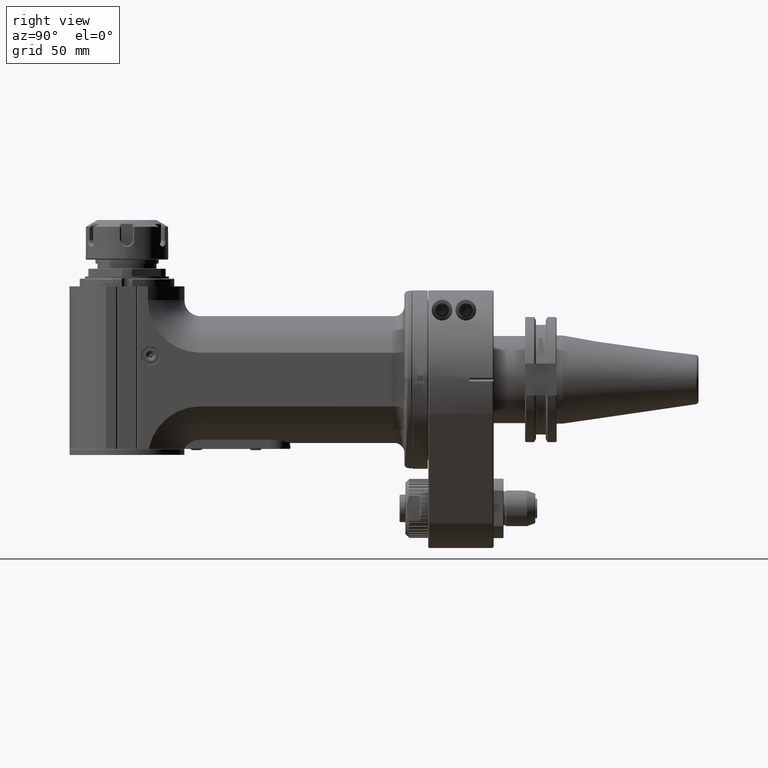
[diagram: clean part render]
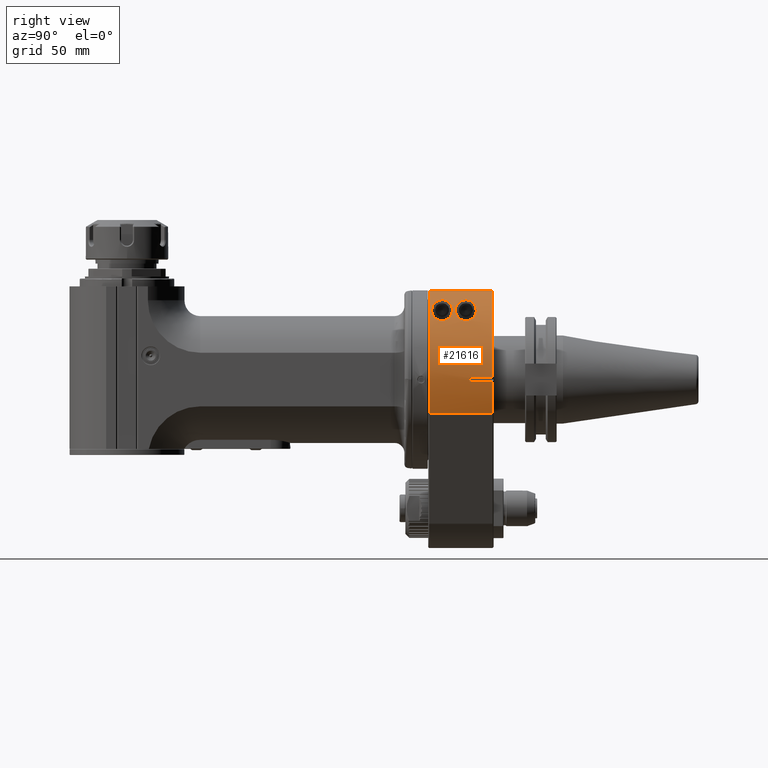
[diagram: same view with one face highlighted and labeled with its STEP entity id]
A machine part, right view. The second image highlights one B-rep face of the part: STEP entity #21616.
In plain terms, the highlighted cylindrical surface (partial cylindrical patch) has radius 45 mm, axis along (0, 1, 0).
Its self-contained STEP definition (entity closure, byte-faithful):
#366=FACE_BOUND('',#3705,.T.);
#367=FACE_BOUND('',#3706,.T.);
#1450=B_SPLINE_CURVE_WITH_KNOTS('',3,(#40767,#40768,#40769,#40770,#40771,
#40772,#40773,#40774,#40775,#40776,#40777,#40778,#40779,#40780,#40781,#40782,
#40783,#40784,#40785,#40786,#40787,#40788,#40789),.UNSPECIFIED.,.F.,.F.,
(4,2,2,2,2,3,2,2,2,2,4),(-1.14650177911681,-0.782118711859802,-0.417735644602789,
-0.208867822301395,-0.104433911150697,0.,0.104433911150697,0.208867822301395,
0.417735644602789,0.782118711859802,1.14650177911681),.UNSPECIFIED.);
#1451=B_SPLINE_CURVE_WITH_KNOTS('',3,(#40790,#40791,#40792,#40793,#40794,
#40795,#40796,#40797,#40798,#40799,#40800,#40801,#40802,#40803,#40804,#40805,
#40806,#40807,#40808,#40809),.UNSPECIFIED.,.F.,.F.,(4,2,2,2,2,2,2,2,2,4),
(1.14650177911681,1.42316705646968,1.69983233382254,1.91463594485582,2.02203775037247,
2.12943955588911,2.3217079428636,2.51397632983809,2.81307214595482,3.11216796207156),
 .UNSPECIFIED.);
#1452=B_SPLINE_CURVE_WITH_KNOTS('',3,(#40812,#40813,#40814,#40815,#40816,
#40817,#40818,#40819,#40820,#40821,#40822,#40823,#40824,#40825,#40826,#40827,
#40828,#40829,#40830,#40831),.UNSPECIFIED.,.F.,.F.,(4,2,2,2,2,2,2,2,2,4),
(1.12703774249658,1.40370301984945,1.68036829720231,1.89517190823559,2.00257371375224,
2.10997551926888,2.30224390624337,2.49451229321786,2.79360810933459,3.09270392545133),
 .UNSPECIFIED.);
#1453=B_SPLINE_CURVE_WITH_KNOTS('',3,(#40832,#40833,#40834,#40835,#40836,
#40837,#40838,#40839,#40840,#40841,#40842,#40843,#40844,#40845,#40846,#40847,
#40848,#40849,#40850,#40851,#40852,#40853,#40854),.UNSPECIFIED.,.F.,.F.,
(4,2,2,2,2,3,2,2,2,2,4),(3.09270392545133,3.45708699270834,3.82147005996535,
4.03033788226675,4.13477179341744,4.23920570456814,4.33003417437082,4.4208626441735,
4.72757109503348,5.0469072710491,5.36624344706473),.UNSPECIFIED.);
#2405=FACE_OUTER_BOUND('',#3704,.T.);
#3704=EDGE_LOOP('',(#19332,#19333,#19334,#19335,#19336,#19337,#19338,#19339));
#3705=EDGE_LOOP('',(#19340,#19341));
#3706=EDGE_LOOP('',(#19342,#19343));
#4537=CIRCLE('',#23171,45.);
#4541=CIRCLE('',#23177,45.);
#4686=CIRCLE('',#23479,45.);
#4687=CIRCLE('',#23482,45.);
#6334=LINE('',#39176,#8396);
#6519=LINE('',#40731,#8581);
#6529=LINE('',#40760,#8591);
#6530=LINE('',#40764,#8592);
#8396=VECTOR('',#27896,10.);
#8581=VECTOR('',#28673,32.00018990274);
#8591=VECTOR('',#28707,10.);
#8592=VECTOR('',#28712,11.4999799494804);
#10524=VERTEX_POINT('',#39142);
#10525=VERTEX_POINT('',#39146);
#10527=VERTEX_POINT('',#39151);
#10538=VERTEX_POINT('',#39184);
#10775=VERTEX_POINT('',#40729);
#10777=VERTEX_POINT('',#40750);
#10779=VERTEX_POINT('',#40758);
#10780=VERTEX_POINT('',#40762);
#10781=VERTEX_POINT('',#40765);
#10782=VERTEX_POINT('',#40766);
#10783=VERTEX_POINT('',#40810);
#10784=VERTEX_POINT('',#40811);
#13303=EDGE_CURVE('',#10524,#10525,#4537,.T.);
#13313=EDGE_CURVE('',#10524,#10527,#6334,.T.);
#13317=EDGE_CURVE('',#10538,#10527,#4541,.T.);
#13701=EDGE_CURVE('',#10775,#10525,#6519,.T.);
#13712=EDGE_CURVE('',#10775,#10777,#4686,.T.);
#13715=EDGE_CURVE('',#10779,#10777,#6529,.T.);
#13716=EDGE_CURVE('',#10779,#10780,#4687,.T.);
#13717=EDGE_CURVE('',#10538,#10780,#6530,.T.);
#13718=EDGE_CURVE('',#10781,#10782,#1450,.T.);
#13719=EDGE_CURVE('',#10782,#10781,#1451,.T.);
#13720=EDGE_CURVE('',#10783,#10784,#1452,.T.);
#13721=EDGE_CURVE('',#10784,#10783,#1453,.T.);
#19332=ORIENTED_EDGE('',*,*,#13712,.T.);
#19333=ORIENTED_EDGE('',*,*,#13715,.F.);
#19334=ORIENTED_EDGE('',*,*,#13716,.T.);
#19335=ORIENTED_EDGE('',*,*,#13717,.F.);
#19336=ORIENTED_EDGE('',*,*,#13317,.T.);
#19337=ORIENTED_EDGE('',*,*,#13313,.F.);
#19338=ORIENTED_EDGE('',*,*,#13303,.T.);
#19339=ORIENTED_EDGE('',*,*,#13701,.F.);
#19340=ORIENTED_EDGE('',*,*,#13718,.T.);
#19341=ORIENTED_EDGE('',*,*,#13719,.T.);
#19342=ORIENTED_EDGE('',*,*,#13720,.F.);
#19343=ORIENTED_EDGE('',*,*,#13721,.F.);
#20609=CYLINDRICAL_SURFACE('',#23481,45.);
#21616=ADVANCED_FACE('',(#2405,#366,#367),#20609,.T.);
#23171=AXIS2_PLACEMENT_3D('',#39148,#27887,#27888);
#23177=AXIS2_PLACEMENT_3D('',#39185,#27905,#27906);
#23479=AXIS2_PLACEMENT_3D('',#40754,#28701,#28702);
#23481=AXIS2_PLACEMENT_3D('',#40761,#28708,#28709);
#23482=AXIS2_PLACEMENT_3D('',#40763,#28710,#28711);
#27887=DIRECTION('center_axis',(0.,1.,0.));
#27888=DIRECTION('ref_axis',(1.,0.,2.109027738445E-8));
#27896=DIRECTION('',(0.,1.,0.));
#27905=DIRECTION('center_axis',(0.,-1.,0.));
#27906=DIRECTION('ref_axis',(0.999758397003229,0.,0.0219806192254406));
#28673=DIRECTION('',(1.46770612851E-13,-1.,-1.414415739578E-13));
#28701=DIRECTION('center_axis',(0.,-1.,0.));
#28702=DIRECTION('ref_axis',(0.923076922750328,0.,-0.384615385399212));
#28707=DIRECTION('',(0.,1.,0.));
#28708=DIRECTION('center_axis',(0.,1.,0.));
#28709=DIRECTION('ref_axis',(1.,0.,0.));
#28710=DIRECTION('center_axis',(0.,-1.,0.));
#28711=DIRECTION('ref_axis',(0.999758397003229,0.,-0.0219806192254506));
#28712=DIRECTION('',(5.7409753551518E-9,-0.999999999999966,-2.61117230017191E-7));
#39142=CARTESIAN_POINT('',(0.750000000009649,0.50022981440102,44.9937495655045));
#39146=CARTESIAN_POINT('',(41.5384615225711,0.500114907696063,-17.3076923458251));
#39148=CARTESIAN_POINT('Origin',(-8.393285966166E-13,0.5002298153949,3.170797058329E-13));
#39151=CARTESIAN_POINT('',(0.750000000011856,32.4999739345885,44.9937495654133));
#39176=CARTESIAN_POINT('',(0.75,0.,44.9937495659119));
#39184=CARTESIAN_POINT('',(44.989128046026,32.4999736150656,0.989129648273171));
#39185=CARTESIAN_POINT('Origin',(-3.67261766546E-13,32.49997393338,6.679101816145E-13));
#40729=CARTESIAN_POINT('',(41.5384614538739,32.5003083543191,-17.3076923172041));
#40731=CARTESIAN_POINT('',(41.53846152241,32.50031310292,-17.30769234576));
#40750=CARTESIAN_POINT('',(44.9891278655388,32.50061634714,-0.989127866035738));
#40754=CARTESIAN_POINT('Origin',(9.166001391305E-13,32.50061634806,1.321165499304E-13));
#40758=CARTESIAN_POINT('',(44.9891278654243,21.,-0.989127865849535));
#40760=CARTESIAN_POINT('',(44.9891278651453,0.,-0.989127865145143));
#40761=CARTESIAN_POINT('Origin',(0.,0.,0.));
#40762=CARTESIAN_POINT('',(44.9891278410214,21.,0.989127830500464));
#40763=CARTESIAN_POINT('Origin',(0.,21.,0.));
#40764=CARTESIAN_POINT('',(44.98912775313,32.49997994948,0.9891308219972));
#40765=CARTESIAN_POINT('',(28.28427124746,1.75,35.));
#40766=CARTESIAN_POINT('',(28.2842712474619,12.25,35.));
#40767=CARTESIAN_POINT('Ctrl Pts',(28.2842712474619,1.75,35.));
#40768=CARTESIAN_POINT('Ctrl Pts',(27.3395744064252,1.75,35.7634303342429));
#40769=CARTESIAN_POINT('Ctrl Pts',(26.2844532844903,1.92201917330533,36.5476501176263));
#40770=CARTESIAN_POINT('Ctrl Pts',(24.1877886998845,2.59849344728223,37.9678032398534));
#40771=CARTESIAN_POINT('Ctrl Pts',(23.1451580209524,3.09643341814543,38.6052267894512));
#40772=CARTESIAN_POINT('Ctrl Pts',(21.736027942972,4.10795048147965,39.4067759231211));
#40773=CARTESIAN_POINT('Ctrl Pts',(21.205197932326,4.57457338079454,39.6931515616155));
#40774=CARTESIAN_POINT('Ctrl Pts',(20.6004725359246,5.39847605858281,40.0084016967221));
#40775=CARTESIAN_POINT('Ctrl Pts',(20.4308787949815,5.6935599483935,40.0948518926029));
#40776=CARTESIAN_POINT('Ctrl Pts',(20.1921836667419,6.32028195020684,40.2155882536973));
#40777=CARTESIAN_POINT('Ctrl Pts',(20.1230589126007,6.65188696283101,40.25));
#40778=CARTESIAN_POINT('Ctrl Pts',(20.1230589126007,7.,40.25));
#40779=CARTESIAN_POINT('Ctrl Pts',(20.1230589126007,7.34811303716899,40.25));
#40780=CARTESIAN_POINT('Ctrl Pts',(20.1921836667419,7.67971804979316,40.2155882536973));
#40781=CARTESIAN_POINT('Ctrl Pts',(20.4308787949815,8.3064400516065,40.0948518926029));
#40782=CARTESIAN_POINT('Ctrl Pts',(20.6004725359246,8.60152394141719,40.0084016967221));
#40783=CARTESIAN_POINT('Ctrl Pts',(21.205197932326,9.42542661920546,39.6931515616155));
#40784=CARTESIAN_POINT('Ctrl Pts',(21.736027942972,9.89204951852035,39.4067759231211));
#40785=CARTESIAN_POINT('Ctrl Pts',(23.1451580209524,10.9035665818546,38.6052267894512));
#40786=CARTESIAN_POINT('Ctrl Pts',(24.1877886998846,11.4015065527178,37.9678032398534));
#40787=CARTESIAN_POINT('Ctrl Pts',(26.2844532844903,12.0779808266947,36.5476501176263));
#40788=CARTESIAN_POINT('Ctrl Pts',(27.3395744064252,12.25,35.7634303342429));
#40789=CARTESIAN_POINT('Ctrl Pts',(28.2842712474619,12.25,35.));
#40790=CARTESIAN_POINT('Ctrl Pts',(28.2842712474619,12.25,35.));
#40791=CARTESIAN_POINT('Ctrl Pts',(29.0015515961545,12.25,34.4203499444887));
#40792=CARTESIAN_POINT('Ctrl Pts',(29.7639205151206,12.1496349974932,33.7642896784261));
#40793=CARTESIAN_POINT('Ctrl Pts',(31.1742531823703,11.6505831755753,32.4666621976752));
#40794=CARTESIAN_POINT('Ctrl Pts',(31.8224991380334,11.2505436414047,31.825922438946));
#40795=CARTESIAN_POINT('Ctrl Pts',(32.7474159380966,10.2944251270807,30.8698039246219));
#40796=CARTESIAN_POINT('Ctrl Pts',(33.1199555105931,9.73942525702287,30.4665647266752));
#40797=CARTESIAN_POINT('Ctrl Pts',(33.5004710769903,8.7727316964671,30.0458680561456));
#40798=CARTESIAN_POINT('Ctrl Pts',(33.5990174805533,8.42856425585664,29.9351933925568));
#40799=CARTESIAN_POINT('Ctrl Pts',(33.7302599443358,7.72120618850676,29.7872345674845));
#40800=CARTESIAN_POINT('Ctrl Pts',(33.7629604744608,7.35800601838881,29.75));
#40801=CARTESIAN_POINT('Ctrl Pts',(33.7629604744608,6.3591053767517,29.75));
#40802=CARTESIAN_POINT('Ctrl Pts',(33.6535722435166,5.69196516153304,29.8753243939876));
#40803=CARTESIAN_POINT('Ctrl Pts',(33.2348069350089,4.49755172888651,30.3404935517149));
#40804=CARTESIAN_POINT('Ctrl Pts',(32.92521356894,3.96965246139063,30.6785341111395));
#40805=CARTESIAN_POINT('Ctrl Pts',(32.0579130177422,2.9202859878695,31.5891783172573));
#40806=CARTESIAN_POINT('Ctrl Pts',(31.3794339061692,2.45225126821455,32.2703807384322));
#40807=CARTESIAN_POINT('Ctrl Pts',(29.8806786317571,1.86725997996511,33.6629083638159));
#40808=CARTESIAN_POINT('Ctrl Pts',(29.0597048448016,1.75,34.3733550228128));
#40809=CARTESIAN_POINT('Ctrl Pts',(28.2842712474619,1.75,35.));
#40810=CARTESIAN_POINT('',(28.28427124746,13.75,35.));
#40811=CARTESIAN_POINT('',(28.2842712474619,24.25,35.));
#40812=CARTESIAN_POINT('Ctrl Pts',(28.2842712474619,13.75,35.));
#40813=CARTESIAN_POINT('Ctrl Pts',(29.0015515961545,13.75,34.4203499444887));
#40814=CARTESIAN_POINT('Ctrl Pts',(29.7639205151206,13.8503650025068,33.7642896784261));
#40815=CARTESIAN_POINT('Ctrl Pts',(31.1742531823703,14.3494168244247,32.4666621976752));
#40816=CARTESIAN_POINT('Ctrl Pts',(31.8224991380334,14.7494563585953,31.825922438946));
#40817=CARTESIAN_POINT('Ctrl Pts',(32.7474159380966,15.7055748729193,30.8698039246219));
#40818=CARTESIAN_POINT('Ctrl Pts',(33.1199555105931,16.2605747429771,30.4665647266752));
#40819=CARTESIAN_POINT('Ctrl Pts',(33.5004710769903,17.2272683035329,30.0458680561456));
#40820=CARTESIAN_POINT('Ctrl Pts',(33.5990174805533,17.5714357441434,29.9351933925568));
#40821=CARTESIAN_POINT('Ctrl Pts',(33.7302599443358,18.2787938114932,29.7872345674845));
#40822=CARTESIAN_POINT('Ctrl Pts',(33.7629604744608,18.6419939816112,29.75));
#40823=CARTESIAN_POINT('Ctrl Pts',(33.7629604744608,19.6408946232483,29.75));
#40824=CARTESIAN_POINT('Ctrl Pts',(33.6535722435166,20.308034838467,29.8753243939876));
#40825=CARTESIAN_POINT('Ctrl Pts',(33.2348069350089,21.5024482711135,30.3404935517149));
#40826=CARTESIAN_POINT('Ctrl Pts',(32.92521356894,22.0303475386094,30.6785341111395));
#40827=CARTESIAN_POINT('Ctrl Pts',(32.0579130177422,23.0797140121305,31.5891783172573));
#40828=CARTESIAN_POINT('Ctrl Pts',(31.3794339061692,23.5477487317855,32.2703807384322));
#40829=CARTESIAN_POINT('Ctrl Pts',(29.8806786317571,24.1327400200349,33.6629083638159));
#40830=CARTESIAN_POINT('Ctrl Pts',(29.0597048448016,24.25,34.3733550228128));
#40831=CARTESIAN_POINT('Ctrl Pts',(28.2842712474619,24.25,35.));
#40832=CARTESIAN_POINT('Ctrl Pts',(28.2842712474619,24.25,35.));
#40833=CARTESIAN_POINT('Ctrl Pts',(27.3395744064252,24.25,35.7634303342429));
#40834=CARTESIAN_POINT('Ctrl Pts',(26.2844532844903,24.0779808266947,36.5476501176263));
#40835=CARTESIAN_POINT('Ctrl Pts',(24.1877886998846,23.4015065527178,37.9678032398534));
#40836=CARTESIAN_POINT('Ctrl Pts',(23.1451580209524,22.9035665818546,38.6052267894512));
#40837=CARTESIAN_POINT('Ctrl Pts',(21.736027942972,21.8920495185204,39.4067759231211));
#40838=CARTESIAN_POINT('Ctrl Pts',(21.205197932326,21.4254266192055,39.6931515616155));
#40839=CARTESIAN_POINT('Ctrl Pts',(20.6004725359246,20.6015239414172,40.0084016967221));
#40840=CARTESIAN_POINT('Ctrl Pts',(20.4308787949815,20.3064400516065,40.0948518926029));
#40841=CARTESIAN_POINT('Ctrl Pts',(20.1921836667419,19.6797180497932,40.2155882536973));
#40842=CARTESIAN_POINT('Ctrl Pts',(20.1230589126007,19.348113037169,40.25));
#40843=CARTESIAN_POINT('Ctrl Pts',(20.1230589126007,19.,40.25));
#40844=CARTESIAN_POINT('Ctrl Pts',(20.1230589126007,18.6972384339911,40.25));
#40845=CARTESIAN_POINT('Ctrl Pts',(20.1798103695348,18.375721667411,40.2217557496493));
#40846=CARTESIAN_POINT('Ctrl Pts',(20.3939049512118,17.7722859383486,40.1136263996317));
#40847=CARTESIAN_POINT('Ctrl Pts',(20.5493321444653,17.4895582343389,40.0344723485156));
#40848=CARTESIAN_POINT('Ctrl Pts',(21.2660892189227,16.43879409014,39.6628473262856));
#40849=CARTESIAN_POINT('Ctrl Pts',(22.158919449635,15.7520539680295,39.1766751704882));
#40850=CARTESIAN_POINT('Ctrl Pts',(23.7582841808269,14.8042061252955,38.2288273277543));
#40851=CARTESIAN_POINT('Ctrl Pts',(24.6829448941409,14.4114641674332,37.6432754436484));
#40852=CARTESIAN_POINT('Ctrl Pts',(26.5318999397921,13.8831891092618,36.3637490110355));
#40853=CARTESIAN_POINT('Ctrl Pts',(27.456362642977,13.75,35.6690511867817));
#40854=CARTESIAN_POINT('Ctrl Pts',(28.2842712474619,13.75,35.));